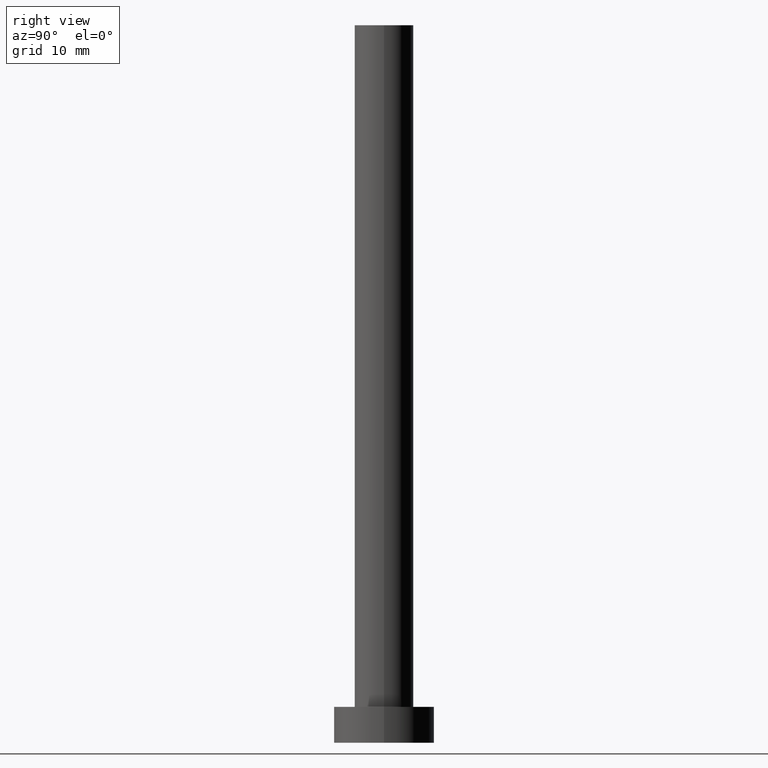
[diagram: clean part render]
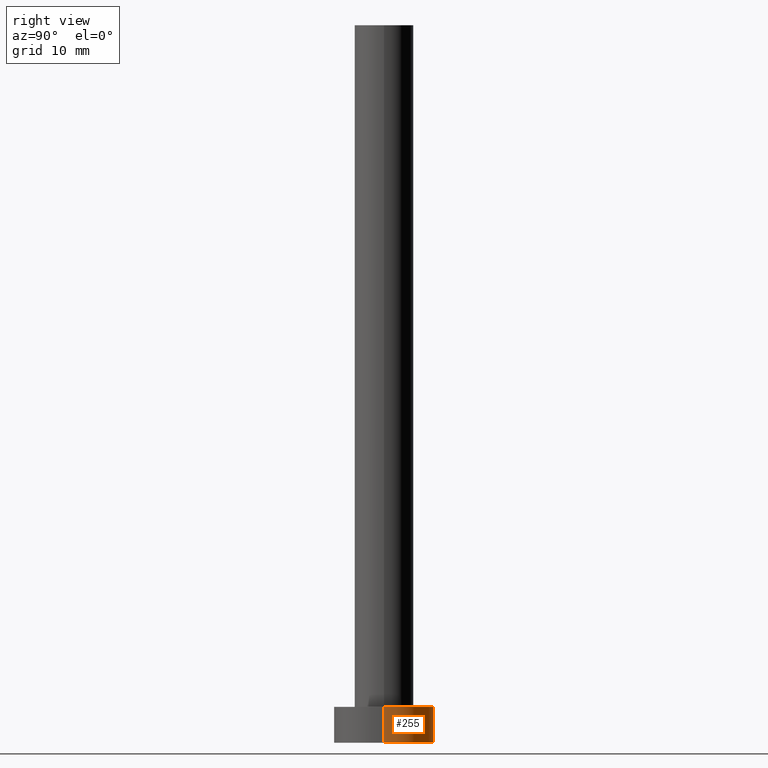
[diagram: same view with one face highlighted and labeled with its STEP entity id]
A machine part, right view. The second image highlights one B-rep face of the part: STEP entity #255.
In plain terms, the highlighted cylindrical surface (partial cylindrical patch) has radius 7 mm, axis along (-0, -0, -1).
Its self-contained STEP definition (entity closure, byte-faithful):
#12 = LINE ( 'NONE', #97, #227 ) ;
#14 = DIRECTION ( 'NONE',  ( 0.000000000000000000, 0.000000000000000000, 1.000000000000000000 ) ) ;
#19 = DIRECTION ( 'NONE',  ( -0.000000000000000000, -0.000000000000000000, -1.000000000000000000 ) ) ;
#21 = AXIS2_PLACEMENT_3D ( 'NONE', #63, #89, #158 ) ;
#26 = EDGE_LOOP ( 'NONE', ( #161, #29, #221, #43 ) ) ;
#28 = CARTESIAN_POINT ( 'NONE',  ( -7.000000000000000000, 0.000000000000000000, 5.000000000000000000 ) ) ;
#29 = ORIENTED_EDGE ( 'NONE', *, *, #165, .T. ) ;
#39 = AXIS2_PLACEMENT_3D ( 'NONE', #83, #19, #173 ) ;
#43 = ORIENTED_EDGE ( 'NONE', *, *, #183, .F. ) ;
#55 = EDGE_CURVE ( 'NONE', #160, #234, #209, .T. ) ;
#56 = CARTESIAN_POINT ( 'NONE',  ( 7.000000000000000000, 8.572527594031473190E-16, 0.000000000000000000 ) ) ;
#63 = CARTESIAN_POINT ( 'NONE',  ( 0.000000000000000000, 0.000000000000000000, 5.000000000000000000 ) ) ;
#71 = DIRECTION ( 'NONE',  ( -0.000000000000000000, -0.000000000000000000, -1.000000000000000000 ) ) ;
#73 = AXIS2_PLACEMENT_3D ( 'NONE', #205, #14, #98 ) ;
#78 = DIRECTION ( 'NONE',  ( -0.000000000000000000, -0.000000000000000000, -1.000000000000000000 ) ) ;
#83 = CARTESIAN_POINT ( 'NONE',  ( 0.000000000000000000, 0.000000000000000000, 5.000000000000000000 ) ) ;
#89 = DIRECTION ( 'NONE',  ( 0.000000000000000000, 0.000000000000000000, 1.000000000000000000 ) ) ;
#97 = CARTESIAN_POINT ( 'NONE',  ( 7.000000000000000000, 8.572527594031473190E-16, 5.000000000000000000 ) ) ;
#98 = DIRECTION ( 'NONE',  ( 1.000000000000000000, 0.000000000000000000, 0.000000000000000000 ) ) ;
#100 = CARTESIAN_POINT ( 'NONE',  ( -7.000000000000000000, 0.000000000000000000, 0.000000000000000000 ) ) ;
#107 = LINE ( 'NONE', #113, #147 ) ;
#108 = VERTEX_POINT ( 'NONE', #100 ) ;
#113 = CARTESIAN_POINT ( 'NONE',  ( -7.000000000000000000, 0.000000000000000000, 5.000000000000000000 ) ) ;
#117 = EDGE_CURVE ( 'NONE', #133, #108, #181, .T. ) ;
#133 = VERTEX_POINT ( 'NONE', #56 ) ;
#138 = FACE_OUTER_BOUND ( 'NONE', #26, .T. ) ;
#147 = VECTOR ( 'NONE', #71, 1000.000000000000000 ) ;
#158 = DIRECTION ( 'NONE',  ( 1.000000000000000000, 0.000000000000000000, 0.000000000000000000 ) ) ;
#160 = VERTEX_POINT ( 'NONE', #253 ) ;
#161 = ORIENTED_EDGE ( 'NONE', *, *, #55, .F. ) ;
#165 = EDGE_CURVE ( 'NONE', #160, #133, #12, .T. ) ;
#173 = DIRECTION ( 'NONE',  ( -1.000000000000000000, 0.000000000000000000, 0.000000000000000000 ) ) ;
#181 = CIRCLE ( 'NONE', #73, 7.000000000000000000 ) ;
#183 = EDGE_CURVE ( 'NONE', #234, #108, #107, .T. ) ;
#205 = CARTESIAN_POINT ( 'NONE',  ( 0.000000000000000000, 0.000000000000000000, 0.000000000000000000 ) ) ;
#209 = CIRCLE ( 'NONE', #21, 7.000000000000000000 ) ;
#218 = CYLINDRICAL_SURFACE ( 'NONE', #39, 7.000000000000000000 ) ;
#221 = ORIENTED_EDGE ( 'NONE', *, *, #117, .T. ) ;
#227 = VECTOR ( 'NONE', #78, 1000.000000000000000 ) ;
#234 = VERTEX_POINT ( 'NONE', #28 ) ;
#253 = CARTESIAN_POINT ( 'NONE',  ( 7.000000000000000000, 8.572527594031473190E-16, 5.000000000000000000 ) ) ;
#255 = ADVANCED_FACE ( 'NONE', ( #138 ), #218, .T. ) ;